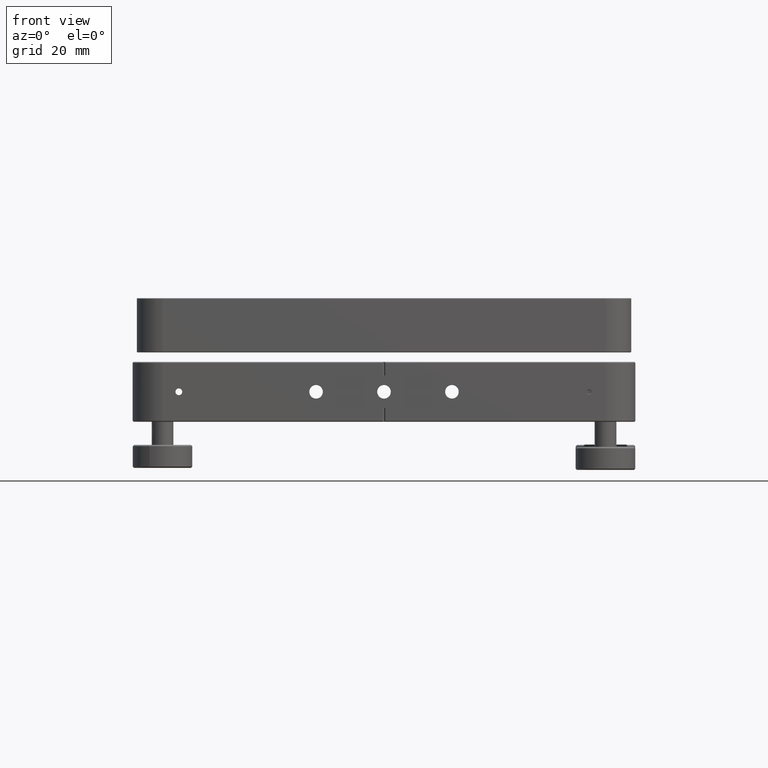
[diagram: clean part render]
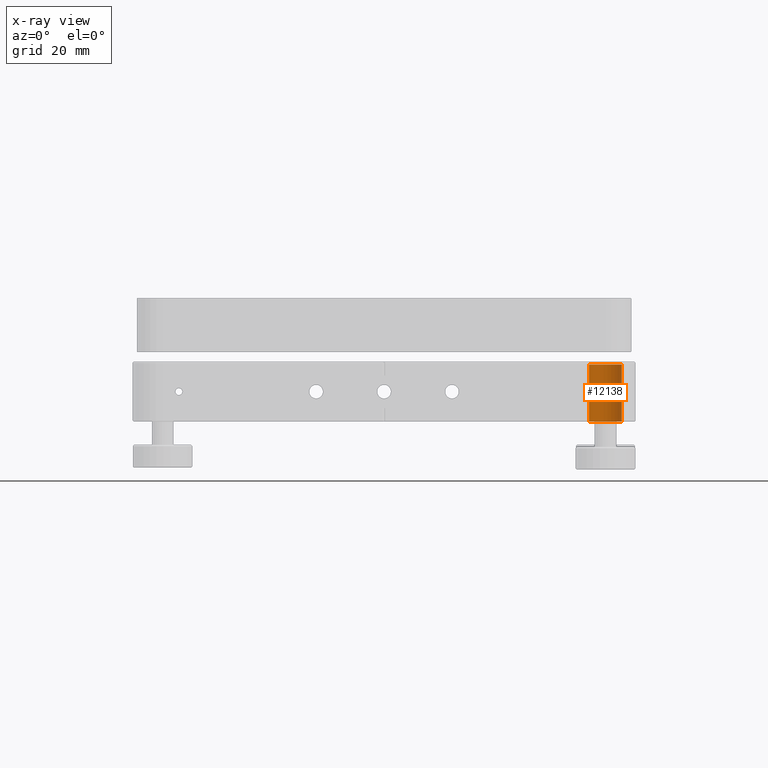
[diagram: x-ray — body ghosted, one internal face saturated and labeled with its STEP entity id]
A machine part, front view, then the same camera in x-ray: the body is ghosted and one INTERNAL B-rep face — a face not visible from any outside direction — is saturated and labeled: STEP entity #12138.
In plain terms, the highlighted cylindrical surface (edge-blend (fillet) strip) has radius 6 mm, axis along (0, -0, -1).
Its self-contained STEP definition (entity closure, byte-faithful):
#441 = DIRECTION ( 'NONE',  ( 0.000000000000000000, -0.000000000000000000, -1.000000000000000000 ) ) ;
#979 = ORIENTED_EDGE ( 'NONE', *, *, #9806, .F. ) ;
#1128 = EDGE_LOOP ( 'NONE', ( #979, #3320, #12337, #4932 ) ) ;
#1590 = DIRECTION ( 'NONE',  ( -1.000000000000000000, 0.000000000000000000, 0.000000000000000000 ) ) ;
#1689 = VERTEX_POINT ( 'NONE', #15429 ) ;
#2389 = AXIS2_PLACEMENT_3D ( 'NONE', #18869, #12377, #3209 ) ;
#3209 = DIRECTION ( 'NONE',  ( 0.000000000000000000, -1.000000000000000000, 0.000000000000000000 ) ) ;
#3320 = ORIENTED_EDGE ( 'NONE', *, *, #13525, .T. ) ;
#3553 = AXIS2_PLACEMENT_3D ( 'NONE', #6022, #11986, #19503 ) ;
#3949 = CARTESIAN_POINT ( 'NONE',  ( 75.49999999999998579, 81.50000000000004263, -11.00000000000000000 ) ) ;
#4636 = VECTOR ( 'NONE', #5163, 1000.000000000000000 ) ;
#4932 = ORIENTED_EDGE ( 'NONE', *, *, #13845, .T. ) ;
#5163 = DIRECTION ( 'NONE',  ( 0.000000000000000000, -0.000000000000000000, -1.000000000000000000 ) ) ;
#6022 = CARTESIAN_POINT ( 'NONE',  ( 81.49999999999998579, 81.50000000000004263, 9.999999999999998224 ) ) ;
#6298 = LINE ( 'NONE', #9424, #8200 ) ;
#6456 = CIRCLE ( 'NONE', #3553, 6.000000000000005329 ) ;
#7422 = VERTEX_POINT ( 'NONE', #7546 ) ;
#7546 = CARTESIAN_POINT ( 'NONE',  ( 87.50000000000000000, 81.50000000000004263, 9.999999999999998224 ) ) ;
#8200 = VECTOR ( 'NONE', #441, 1000.000000000000000 ) ;
#8391 = FACE_OUTER_BOUND ( 'NONE', #1128, .T. ) ;
#8484 = CIRCLE ( 'NONE', #2389, 6.000000000000005329 ) ;
#9347 = DIRECTION ( 'NONE',  ( 0.000000000000000000, -0.000000000000000000, -1.000000000000000000 ) ) ;
#9424 = CARTESIAN_POINT ( 'NONE',  ( 75.49999999999998579, 81.50000000000004263, 11.00000000000000000 ) ) ;
#9784 = CARTESIAN_POINT ( 'NONE',  ( 87.50000000000000000, 81.50000000000004263, -11.00000000000000000 ) ) ;
#9806 = EDGE_CURVE ( 'NONE', #7422, #12823, #11715, .T. ) ;
#9893 = CARTESIAN_POINT ( 'NONE',  ( 87.50000000000000000, 81.50000000000004263, 11.00000000000000000 ) ) ;
#11715 = LINE ( 'NONE', #9893, #4636 ) ;
#11986 = DIRECTION ( 'NONE',  ( -0.000000000000000000, 0.000000000000000000, 1.000000000000000000 ) ) ;
#12138 = ADVANCED_FACE ( 'NONE', ( #8391 ), #18940, .F. ) ;
#12337 = ORIENTED_EDGE ( 'NONE', *, *, #14371, .T. ) ;
#12377 = DIRECTION ( 'NONE',  ( -0.000000000000000000, -0.000000000000000000, -1.000000000000000000 ) ) ;
#12823 = VERTEX_POINT ( 'NONE', #9784 ) ;
#13525 = EDGE_CURVE ( 'NONE', #7422, #1689, #6456, .T. ) ;
#13845 = EDGE_CURVE ( 'NONE', #16964, #12823, #8484, .T. ) ;
#14371 = EDGE_CURVE ( 'NONE', #1689, #16964, #6298, .T. ) ;
#14437 = CARTESIAN_POINT ( 'NONE',  ( 81.49999999999998579, 81.50000000000004263, 11.00000000000000000 ) ) ;
#15429 = CARTESIAN_POINT ( 'NONE',  ( 75.49999999999998579, 81.50000000000004263, 9.999999999999998224 ) ) ;
#15784 = AXIS2_PLACEMENT_3D ( 'NONE', #14437, #9347, #1590 ) ;
#16964 = VERTEX_POINT ( 'NONE', #3949 ) ;
#18869 = CARTESIAN_POINT ( 'NONE',  ( 81.49999999999998579, 81.50000000000004263, -11.00000000000000000 ) ) ;
#18940 = CYLINDRICAL_SURFACE ( 'NONE', #15784, 6.000000000000005329 ) ;
#19503 = DIRECTION ( 'NONE',  ( -1.000000000000000000, 0.000000000000000000, 0.000000000000000000 ) ) ;